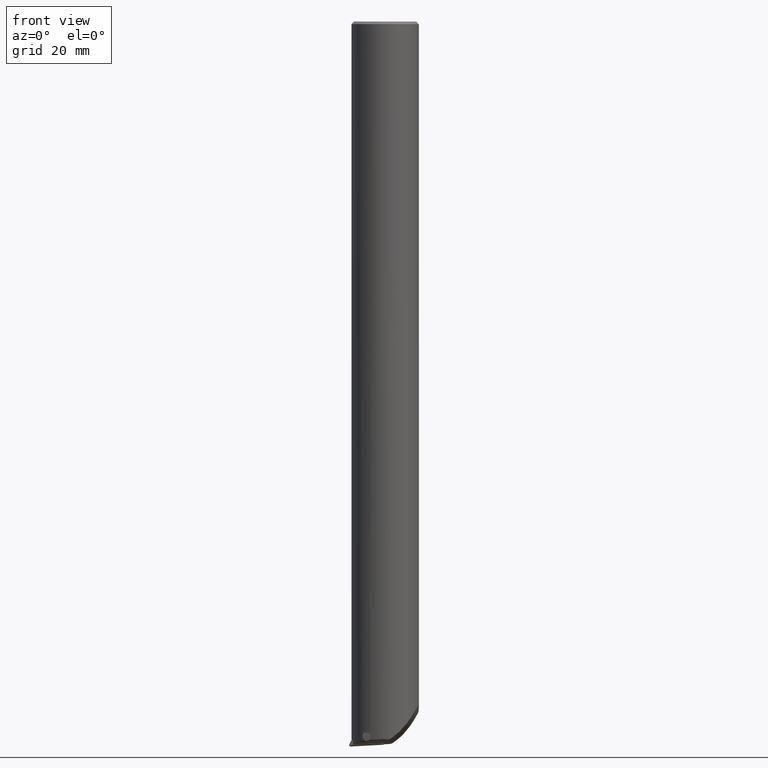
[diagram: clean part render]
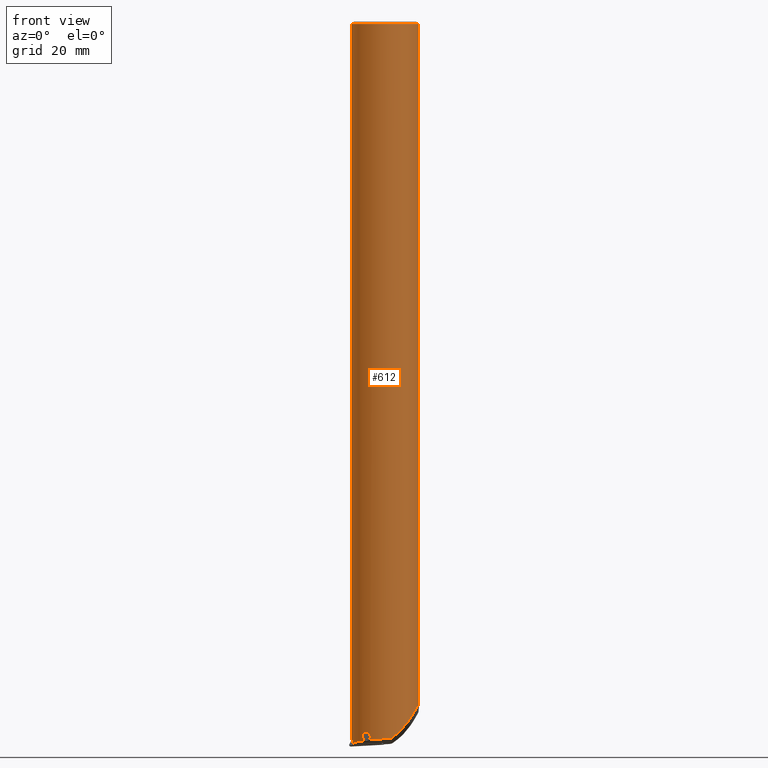
[diagram: same view with one face highlighted and labeled with its STEP entity id]
A machine part, front view. The second image highlights one B-rep face of the part: STEP entity #612.
In plain terms, the highlighted cylindrical surface (edge-blend (fillet) strip) has radius 6.5 mm, axis along (-0, -0, 1).
Its self-contained STEP definition (entity closure, byte-faithful):
#488=VERTEX_POINT('NONE',#1380);
#494=EDGE_CURVE('NONE',#876,#842,#1386,.F.);
#528=EDGE_CURVE('NONE',#1158,#570,#1421,.F.);
#534=VERTEX_POINT('NONE',#1429);
#570=VERTEX_POINT('NONE',#1468);
#592=EDGE_CURVE('NONE',#1158,#1062,#1493,.T.);
#594=EDGE_CURVE('NONE',#682,#956,#1495,.T.);
#612=ADVANCED_FACE('NONE',(#1516),#1517,.T.);
#632=EDGE_CURVE('NONE',#876,#534,#1538,.T.);
#648=EDGE_CURVE('NONE',#956,#534,#1558,.T.);
#682=VERTEX_POINT('NONE',#1592);
#786=EDGE_CURVE('NONE',#1312,#1224,#1710,.T.);
#842=VERTEX_POINT('NONE',#1771);
#876=VERTEX_POINT('NONE',#1810);
#956=VERTEX_POINT('NONE',#1902);
#1052=EDGE_CURVE('NONE',#1150,#488,#2010,.T.);
#1062=VERTEX_POINT('NONE',#2022);
#1100=VERTEX_POINT('NONE',#2064);
#1116=EDGE_CURVE('NONE',#1312,#1150,#2083,.F.);
#1132=EDGE_CURVE('NONE',#682,#1224,#2100,.F.);
#1150=VERTEX_POINT('NONE',#2118);
#1158=VERTEX_POINT('NONE',#2126);
#1214=EDGE_CURVE('NONE',#570,#1100,#2186,.F.);
#1224=VERTEX_POINT('NONE',#2196);
#1228=EDGE_CURVE('NONE',#488,#1062,#2200,.F.);
#1312=VERTEX_POINT('NONE',#2288);
#1322=EDGE_CURVE('NONE',#1100,#842,#2298,.F.);
#1380=CARTESIAN_POINT('',(-4.42530965923228,-4.76094889910672,-15.0708114227921));
#1386=LINE('',#2369,#2370);
#1421=ELLIPSE('',#2432,74.579136096854,6.5);
#1429=CARTESIAN_POINT('',(-6.5,7.96020419445779E-016,122.501447599703));
#1468=CARTESIAN_POINT('',(-6.20950464446664,-1.92147132956681,-15.756739167589));
#1493=(B_SPLINE_CURVE(3,(#2552,#2553,#2554,#2555),.UNSPECIFIED.,.F.,.F.)B_SPLINE_CURVE_WITH_KNOTS((4,4),(4.60681405848681,5.2558431189702),.UNSPECIFIED.)RATIONAL_B_SPLINE_CURVE((1.0,0.965203752997495,0.965203752997495,1.0))BOUNDED_CURVE()REPRESENTATION_ITEM('')GEOMETRIC_REPRESENTATION_ITEM()CURVE());
#1495=LINE('',#2564,#2565);
#1516=FACE_OUTER_BOUND('',#2592,.T.);
#1517=CYLINDRICAL_SURFACE('',#2593,6.5);
#1538=LINE('',#2624,#2625);
#1558=CIRCLE('',#2650,6.5);
#1592=CARTESIAN_POINT('',(6.5,3.04439560930842E-015,-9.61536316319582));
#1710=(B_SPLINE_CURVE(3,(#2988,#2989,#2990,#2991),.UNSPECIFIED.,.F.,.F.)B_SPLINE_CURVE_WITH_KNOTS((4,4),(5.36945461944668,6.06432775876669),.UNSPECIFIED.)RATIONAL_B_SPLINE_CURVE((1.0,0.960165746758836,0.960165746758836,1.0))BOUNDED_CURVE()REPRESENTATION_ITEM('')GEOMETRIC_REPRESENTATION_ITEM()CURVE());
#1771=CARTESIAN_POINT('',(-6.5,-1.33226762955019E-015,-15.6402071282697));
#1810=CARTESIAN_POINT('',(-6.5,2.66453525910038E-015,-6.45982552211288));
#1902=CARTESIAN_POINT('',(6.5,0.0,122.501447599703));
#2010=B_SPLINE_CURVE_WITH_KNOTS('',3,(#3521,#3522,#3523,#3524,#3525,#3526,#3527,#3528,#3529,#3530,#3531,#3532,#3533,#3534,#3535,#3536,#3537,#3538,#3539,#3540,#3541),.UNSPECIFIED.,.F.,.F.,(4,2,2,2,2,2,2,2,3,4),(2.6670048696553,2.92070849741279,3.21514312309331,3.56624870204773,3.91735428100216,4.28773746977132,4.65812065854048,4.94768878818671,5.23725691783293,5.27817580578591),.UNSPECIFIED.);
#2022=CARTESIAN_POINT('',(-3.82947369957937,-5.25215490862845,-15.8339105278411));
#2064=CARTESIAN_POINT('',(-6.2901609843293,-1.63825357964554,-15.8908624738587));
#2083=B_SPLINE_CURVE_WITH_KNOTS('',3,(#3691,#3692,#3693,#3694,#3695,#3696,#3697,#3698,#3699,#3700),.UNSPECIFIED.,.F.,.F.,(4,2,2,2,4),(2.57025204817845,2.61098304610066,2.89934287292127,3.18770269974187,3.36387540062716),.UNSPECIFIED.);
#2100=B_SPLINE_CURVE_WITH_KNOTS('',3,(#3725,#3726,#3727,#3728,#3729,#3730,#3731,#3732,#3733,#3734,#3735,#3736,#3737,#3738,#3739,#3740,#3741,#3742,#3743,#3744,#3745,#3746,#3747,#3748,#3749,#3750,#3751,#3752,#3753,#3754),.UNSPECIFIED.,.F.,.F.,(4,2,2,2,2,2,2,2,2,2,2,2,2,2,4),(3.61719510555997,5.42579265833996,7.23439021111994,8.50916750807439,9.78394480502883,11.0587221019833,12.3334993989377,13.1392194046414,13.9449394103451,14.7506594160488,15.5563794217526,16.1407484724,16.7251175230475,17.8938556243425,18.9695876052733),.UNSPECIFIED.);
#2118=CARTESIAN_POINT('',(-2.86744758501514,-5.83333046785375,-15.0826766941258));
#2126=CARTESIAN_POINT('',(-6.2253023331888,-1.86965527849227,-16.3489993414936));
#2186=ELLIPSE('',#3869,14.3721706682738,6.5);
#2196=CARTESIAN_POINT('',(1.15396027562318,-6.39674727359802,-15.4540526820283));
#2200=B_SPLINE_CURVE_WITH_KNOTS('',3,(#3892,#3893,#3894,#3895,#3896,#3897,#3898,#3899,#3900,#3901),.UNSPECIFIED.,.F.,.F.,(4,2,2,2,4),(4.09150601034432,4.25252564043833,4.632751757004,4.93499872672133,5.1963268084857),.UNSPECIFIED.);
#2288=CARTESIAN_POINT('',(-3.20936330742327,-5.65243196871622,-15.756374665492));
#2298=ELLIPSE('',#4081,7.32298671996296,6.5);
#2369=CARTESIAN_POINT('',(-6.5,0.0,4.81724137931033));
#2370=VECTOR('',#4143,1.0);
#2432=AXIS2_PLACEMENT_3D('',#4171,#4172,#4173);
#2552=CARTESIAN_POINT('',(-6.2253023331888,-1.86965527849227,-16.3489993414936));
#2553=CARTESIAN_POINT('',(-5.8135501416048,-3.24064698399564,-16.1677776804812));
#2554=CARTESIAN_POINT('',(-4.98615018376548,-4.40879399255269,-15.9898916427568));
#2555=CARTESIAN_POINT('',(-3.82947369957937,-5.25215490862845,-15.8339105278411));
#2564=CARTESIAN_POINT('',(6.5,0.0,4.81724137931033));
#2565=VECTOR('',#4253,1000.0);
#2592=EDGE_LOOP('',(#4289,#4290,#4291,#4292,#4293,#4294,#4295,#4296,#4297,#4298,#4299,#4300,#4301));
#2593=AXIS2_PLACEMENT_3D('',#4302,#4303,#4304);
#2624=CARTESIAN_POINT('',(-6.5,7.96020419445779E-016,4.81724137931033));
#2625=VECTOR('',#4326,1000.0);
#2650=AXIS2_PLACEMENT_3D('',#4370,#4371,#4372);
#2988=CARTESIAN_POINT('',(-3.20936330742327,-5.65243196871622,-15.756374665492));
#2989=CARTESIAN_POINT('',(-1.87307386461526,-6.41115641327051,-15.6014806471758));
#2990=CARTESIAN_POINT('',(-0.358292485193564,-6.66955461427359,-15.4965258569971));
#2991=CARTESIAN_POINT('',(1.15396027562318,-6.39674727359802,-15.4540526820283));
#3521=CARTESIAN_POINT('',(-2.86744758501514,-5.83333046785375,-15.0826766941258));
#3522=CARTESIAN_POINT('',(-2.87191194745117,-5.83113595386961,-14.9969741958841));
#3523=CARTESIAN_POINT('',(-2.89112870429453,-5.82174414335602,-14.9085391365758));
#3524=CARTESIAN_POINT('',(-2.96150343057601,-5.78630183280318,-14.7314900374489));
#3525=CARTESIAN_POINT('',(-3.01748453654257,-5.75757871749993,-14.6451296890781));
#3526=CARTESIAN_POINT('',(-3.15299600679097,-5.68468296188626,-14.494712562393));
#3527=CARTESIAN_POINT('',(-3.24569584125285,-5.63283587503129,-14.425719778609));
#3528=CARTESIAN_POINT('',(-3.44406869590591,-5.51378022302165,-14.331846365989));
#3529=CARTESIAN_POINT('',(-3.5496100369884,-5.44646058529002,-14.306828471311));
#3530=CARTESIAN_POINT('',(-3.74846032997304,-5.31170887384471,-14.2950392241688));
#3531=CARTESIAN_POINT('',(-3.85694856548746,-5.23354069899735,-14.3093127535117));
#3532=CARTESIAN_POINT('',(-4.05764550605164,-5.0795190158864,-14.3834010123383));
#3533=CARTESIAN_POINT('',(-4.14996051291415,-5.0037259487116,-14.4430532930582));
#3534=CARTESIAN_POINT('',(-4.28158595316202,-4.89119567200264,-14.5787166285654));
#3535=CARTESIAN_POINT('',(-4.33486216503371,-4.84369369176523,-14.6561466311256));
#3536=CARTESIAN_POINT('',(-4.40735752695247,-4.77782359279285,-14.8332670323005));
#3537=CARTESIAN_POINT('',(-4.42637862212371,-4.75995507264577,-14.9332237849083));
#3538=CARTESIAN_POINT('',(-4.42637862212371,-4.75995507264577,-15.0297464947904));
#3539=CARTESIAN_POINT('',(-4.42637862212371,-4.75995507264577,-15.043386124108));
#3540=CARTESIAN_POINT('',(-4.42602322181308,-4.76028564154017,-15.0570858008113));
#3541=CARTESIAN_POINT('',(-4.42530965923228,-4.76094889910672,-15.0708114227921));
#3691=CARTESIAN_POINT('',(-2.86744758501514,-5.83333046785375,-15.0826766941258));
#3692=CARTESIAN_POINT('',(-2.86673085132586,-5.8336827873902,-15.0964358520404));
#3693=CARTESIAN_POINT('',(-2.86637862212371,-5.83385580852254,-15.1101236356243));
#3694=CARTESIAN_POINT('',(-2.86637862212371,-5.83385580852254,-15.2198205772053));
#3695=CARTESIAN_POINT('',(-2.88522227493021,-5.82471268197092,-15.3217175673883));
#3696=CARTESIAN_POINT('',(-2.96070447380138,-5.78671016143915,-15.5063238622914));
#3697=CARTESIAN_POINT('',(-3.01728660013147,-5.75770227545689,-15.5890256336435));
#3698=CARTESIAN_POINT('',(-3.11912513030034,-5.70289243780708,-15.6919892887874));
#3699=CARTESIAN_POINT('',(-3.1626246148409,-5.67896947431399,-15.7269610235972));
#3700=CARTESIAN_POINT('',(-3.20936330742327,-5.65243196871622,-15.756374665492));
#3725=CARTESIAN_POINT('',(-0.861745583250183,-6.44262326616641,-16.6339809133037));
#3726=CARTESIAN_POINT('',(-0.304374061986367,-6.51717567678149,-16.3690449993641));
#3727=CARTESIAN_POINT('',(0.247389169158843,-6.51636585034366,-16.0593428262309));
#3728=CARTESIAN_POINT('',(1.28739514576353,-6.39271766114809,-15.3760453744752));
#3729=CARTESIAN_POINT('',(1.77574770023091,-6.27017077208399,-15.002564525311));
#3730=CARTESIAN_POINT('',(2.52465409733003,-5.99871524215437,-14.3530980436794));
#3731=CARTESIAN_POINT('',(2.83076364918721,-5.86076505248567,-14.0630430346869));
#3732=CARTESIAN_POINT('',(3.41716941765245,-5.53938110413407,-13.4544473726826));
#3733=CARTESIAN_POINT('',(3.69750840367838,-5.35603731906798,-13.1359004209866));
#3734=CARTESIAN_POINT('',(4.2204950141864,-4.95440505139841,-12.4891547145265));
#3735=CARTESIAN_POINT('',(4.46328536260331,-4.73612304442348,-12.1608214910294));
#3736=CARTESIAN_POINT('',(4.90562312653296,-4.27628804929558,-11.5167911898588));
#3737=CARTESIAN_POINT('',(5.10521211370524,-4.03481588357206,-11.2010649614002));
#3738=CARTESIAN_POINT('',(5.39507931235629,-3.63046047495171,-10.71793484063));
#3739=CARTESIAN_POINT('',(5.50677462955797,-3.45978066323682,-10.5247671370237));
#3740=CARTESIAN_POINT('',(5.71985296320514,-3.09482328310579,-10.1488445963934));
#3741=CARTESIAN_POINT('',(5.8212604014614,-2.90065277610334,-9.96599967684612));
#3742=CARTESIAN_POINT('',(6.00829887514959,-2.49022167255034,-9.63834654394014));
#3743=CARTESIAN_POINT('',(6.09386740038786,-2.27446013402794,-9.49366202320232));
#3744=CARTESIAN_POINT('',(6.24592024019879,-1.8157282461356,-9.27862064517588));
#3745=CARTESIAN_POINT('',(6.31258198097557,-1.57269134484916,-9.20853133880326));
#3746=CARTESIAN_POINT('',(6.40589828492102,-1.11909199366575,-9.19287939961592));
#3747=CARTESIAN_POINT('',(6.43626715110286,-0.927584632534194,-9.21955427659605));
#3748=CARTESIAN_POINT('',(6.47939177978339,-0.550845068539989,-9.3279985217632));
#3749=CARTESIAN_POINT('',(6.49220431371954,-0.365482950098772,-9.40929341671299));
#3750=CARTESIAN_POINT('',(6.5076189984837,0.17341856564798,-9.70312492020515));
#3751=CARTESIAN_POINT('',(6.4866424643693,0.511664675327245,-9.96429973649594));
#3752=CARTESIAN_POINT('',(6.41581785939018,1.07801358409146,-10.4480054608374));
#3753=CARTESIAN_POINT('',(6.36469888537192,1.34751592833067,-10.703091047915));
#3754=CARTESIAN_POINT('',(6.29664643656311,1.61314712686633,-10.9696238557742));
#3869=AXIS2_PLACEMENT_3D('',#5136,#5137,#5138);
#3892=CARTESIAN_POINT('',(-3.82947369957937,-5.25215490862845,-15.8339105278411));
#3893=CARTESIAN_POINT('',(-3.87405933170023,-5.21964644142664,-15.8202585330869));
#3894=CARTESIAN_POINT('',(-3.91796475491208,-5.18675169063842,-15.8025324976773));
#3895=CARTESIAN_POINT('',(-4.0600338550393,-5.07759452797522,-15.7303011514767));
#3896=CARTESIAN_POINT('',(-4.15051459581452,-5.00321577759318,-15.6579977521813));
#3897=CARTESIAN_POINT('',(-4.2795391544442,-4.89297388144005,-15.5065000433877));
#3898=CARTESIAN_POINT('',(-4.33254808156268,-4.84577033665884,-15.4223150400842));
#3899=CARTESIAN_POINT('',(-4.40106131346269,-4.78356567773619,-15.2471335612314));
#3900=CARTESIAN_POINT('',(-4.4207524987182,-4.7651847871343,-15.1584699746913));
#3901=CARTESIAN_POINT('',(-4.42530965923228,-4.76094889910672,-15.0708114227921));
#4081=AXIS2_PLACEMENT_3D('',#5229,#5230,#5231);
#4143=DIRECTION('',(0.0,-0.0,1.0));
#4171=CARTESIAN_POINT('',(0.0,0.0,-37.7192569627938));
#4172=DIRECTION('',(3.4928657188793E-015,-0.996194698091746,-0.0871557427476582));
#4173=DIRECTION('',(-0.0,-0.0871557427476582,0.996194698091746));
#4253=DIRECTION('',(-0.0,0.0,1.0));
#4289=ORIENTED_EDGE('',*,*,#632,.F.);
#4290=ORIENTED_EDGE('',*,*,#494,.T.);
#4291=ORIENTED_EDGE('',*,*,#1322,.F.);
#4292=ORIENTED_EDGE('',*,*,#1214,.F.);
#4293=ORIENTED_EDGE('',*,*,#528,.F.);
#4294=ORIENTED_EDGE('',*,*,#592,.T.);
#4295=ORIENTED_EDGE('',*,*,#1228,.F.);
#4296=ORIENTED_EDGE('',*,*,#1052,.F.);
#4297=ORIENTED_EDGE('',*,*,#1116,.F.);
#4298=ORIENTED_EDGE('',*,*,#786,.T.);
#4299=ORIENTED_EDGE('',*,*,#1132,.F.);
#4300=ORIENTED_EDGE('',*,*,#594,.T.);
#4301=ORIENTED_EDGE('',*,*,#648,.T.);
#4302=CARTESIAN_POINT('',(0.0,0.0,4.81724137931033));
#4303=DIRECTION('',(-0.0,-0.0,1.0));
#4304=DIRECTION('',(1.0,0.0,0.0));
#4326=DIRECTION('',(-0.0,0.0,1.0));
#4370=CARTESIAN_POINT('',(0.0,0.0,122.501447599703));
#4371=DIRECTION('',(0.0,0.0,-1.0));
#4372=DIRECTION('',(1.0,0.0,0.0));
#5136=CARTESIAN_POINT('',(0.0,0.0,-3.35524141441391));
#5137=DIRECTION('',(-0.891006524188364,-0.0395678792051844,0.452262928824566));
#5138=DIRECTION('',(0.451817638758281,0.0200643488771805,0.891884658019761));
#5229=CARTESIAN_POINT('',(0.0,0.0,-18.9647735288518));
#5230=DIRECTION('',(0.453990499739551,-0.0776563354086447,0.887615975361605));
#5231=DIRECTION('',(0.874908755020355,-0.149655571583102,-0.460584281410978));